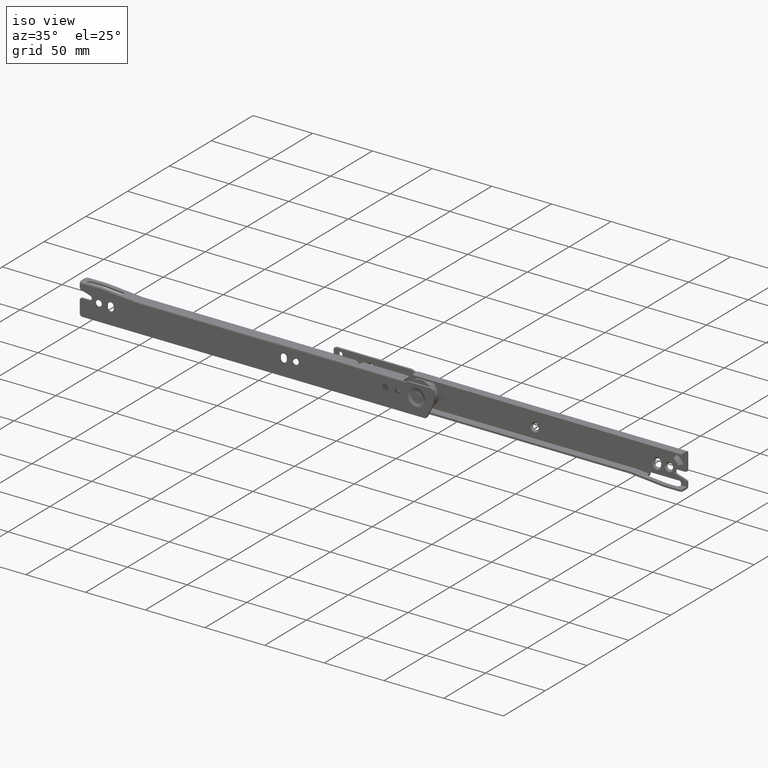
[diagram: clean part render]
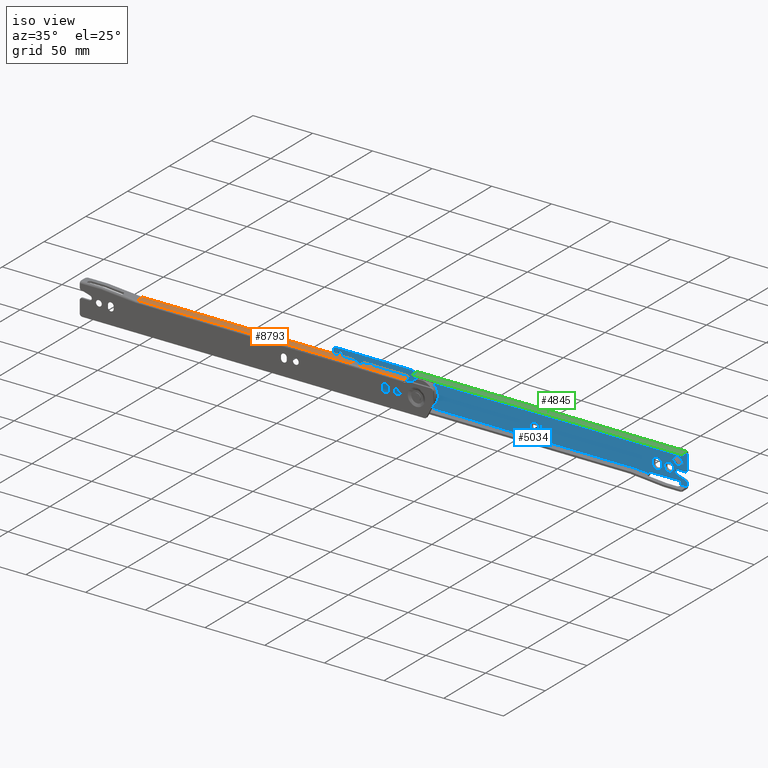
[diagram: same view with three faces highlighted in distinct colors, each labeled with its STEP entity id]
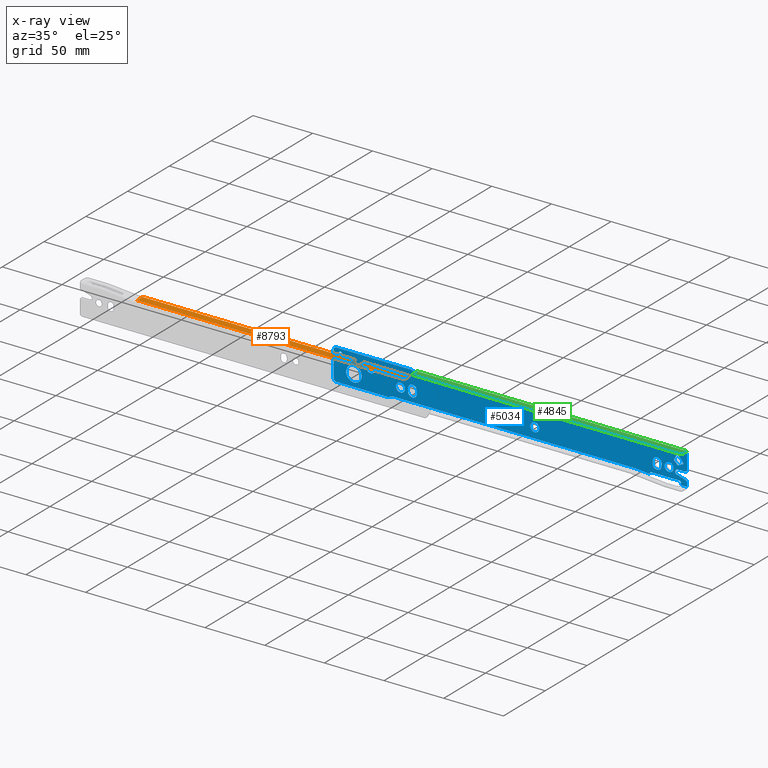
[diagram: x-ray of the same camera — body ghosted, the three highlighted faces saturated]
A machine part, iso view with three faces highlighted in distinct colors.
The next image is the same camera in x-ray (body ghosted, the three faces saturated) — at least one of them is partly hidden behind the body in this view.
Their STEP definitions:

[orange] entity #8793 — the highlighted face is a freeform B-spline surface patch.
#6463=CARTESIAN_POINT('',(271.0,6.0,24.0));
#6464=VERTEX_POINT('',#6463);
#6465=CARTESIAN_POINT('',(269.0,8.0,24.0));
#6466=VERTEX_POINT('',#6465);
#6467=CARTESIAN_POINT('',(271.0,6.0,24.0));
#6468=CARTESIAN_POINT('',(271.0,8.0,23.999999999999996));
#6469=CARTESIAN_POINT('',(269.0,8.0,24.0));
#6477=(BOUNDED_CURVE()B_SPLINE_CURVE(2,(#6467,#6468,#6469),.UNSPECIFIED.,.F.,.U.)CURVE()GEOMETRIC_REPRESENTATION_ITEM()QUASI_UNIFORM_CURVE()RATIONAL_B_SPLINE_CURVE((1.0,0.707106781186548,1.0))REPRESENTATION_ITEM(''));
#6478=EDGE_CURVE('',#6464,#6466,#6477,.T.);
#6524=CARTESIAN_POINT('',(225.056778559224000,8.0,24.0));
#6525=VERTEX_POINT('',#6524);
#6541=CARTESIAN_POINT('',(225.056778559224000,2.0,24.0));
#6542=VERTEX_POINT('',#6541);
#6543=CARTESIAN_POINT('',(225.056778559224000,2.0,24.0));
#6544=CARTESIAN_POINT('',(225.056778559224000,8.0,24.0));
#6545=QUASI_UNIFORM_CURVE('',1,(#6543,#6544),.UNSPECIFIED.,.F.,.U.);
#6546=EDGE_CURVE('',#6542,#6525,#6545,.T.);
#6587=CARTESIAN_POINT('',(232.507881440775490,8.0,24.0));
#6588=VERTEX_POINT('',#6587);
#6609=CARTESIAN_POINT('',(232.507881440775490,2.0,24.0));
#6610=VERTEX_POINT('',#6609);
#6624=CARTESIAN_POINT('',(232.507881440775490,8.0,24.0));
#6625=CARTESIAN_POINT('',(232.507881440775490,2.0,24.0));
#6626=QUASI_UNIFORM_CURVE('',1,(#6624,#6625),.UNSPECIFIED.,.F.,.U.);
#6627=EDGE_CURVE('',#6588,#6610,#6626,.T.);
#7940=CARTESIAN_POINT('',(271.0,1.500000000000000,24.0));
#7941=VERTEX_POINT('',#7940);
#7955=CARTESIAN_POINT('',(47.0,1.500000000000055,24.0));
#7956=VERTEX_POINT('',#7955);
#7957=CARTESIAN_POINT('',(47.0,1.500000000000055,24.0));
#7958=CARTESIAN_POINT('',(271.0,1.500000000000000,24.0));
#7959=QUASI_UNIFORM_CURVE('',1,(#7957,#7958),.UNSPECIFIED.,.F.,.U.);
#7960=EDGE_CURVE('',#7956,#7941,#7959,.T.);
#8475=CARTESIAN_POINT('',(47.0,8.0,24.0));
#8476=VERTEX_POINT('',#8475);
#8477=CARTESIAN_POINT('',(47.0,8.0,24.0));
#8478=CARTESIAN_POINT('',(47.0,1.500000000000055,24.0));
#8479=QUASI_UNIFORM_CURVE('',1,(#8477,#8478),.UNSPECIFIED.,.F.,.U.);
#8480=EDGE_CURVE('',#8476,#7956,#8479,.T.);
#8575=CARTESIAN_POINT('',(271.0,1.500000000000000,24.0));
#8576=CARTESIAN_POINT('',(271.0,6.0,24.0));
#8577=QUASI_UNIFORM_CURVE('',1,(#8575,#8576),.UNSPECIFIED.,.F.,.U.);
#8578=EDGE_CURVE('',#7941,#6464,#8577,.T.);
#8740=CARTESIAN_POINT('',(225.056778559224000,8.0,24.0));
#8741=CARTESIAN_POINT('',(47.0,8.0,24.0));
#8742=QUASI_UNIFORM_CURVE('',1,(#8740,#8741),.UNSPECIFIED.,.F.,.U.);
#8743=EDGE_CURVE('',#6525,#8476,#8742,.T.);
#8750=CARTESIAN_POINT('',(269.0,8.0,24.0));
#8751=CARTESIAN_POINT('',(232.507881440775490,8.0,24.0));
#8752=QUASI_UNIFORM_CURVE('',1,(#8750,#8751),.UNSPECIFIED.,.F.,.U.);
#8753=EDGE_CURVE('',#6466,#6588,#8752,.T.);
#8773=CARTESIAN_POINT('',(35.811200434155452,1.175325012598261,24.0));
#8774=CARTESIAN_POINT('',(282.188805573992680,1.175325012598261,24.0));
#8775=CARTESIAN_POINT('',(35.811200434155452,8.324675161745324,24.0));
#8776=CARTESIAN_POINT('',(282.188805573992680,8.324675161745324,24.0));
#8777=B_SPLINE_SURFACE_WITH_KNOTS('',1,1,((#8773,#8775),(#8774,#8776)),.UNSPECIFIED.,.F.,.F.,.U.,(2,2),(2,2),(0.0,246.377605139837300),(0.0,7.149350149147063),.UNSPECIFIED.);
#8778=ORIENTED_EDGE('',*,*,#8578,.T.);
#8779=ORIENTED_EDGE('',*,*,#6478,.T.);
#8780=ORIENTED_EDGE('',*,*,#8753,.T.);
#8781=ORIENTED_EDGE('',*,*,#6627,.T.);
#8782=CARTESIAN_POINT('',(225.056778559224000,2.0,24.0));
#8783=CARTESIAN_POINT('',(232.507881440775490,2.0,24.0));
#8784=QUASI_UNIFORM_CURVE('',1,(#8782,#8783),.UNSPECIFIED.,.F.,.U.);
#8785=EDGE_CURVE('',#6542,#6610,#8784,.T.);
#8786=ORIENTED_EDGE('',*,*,#8785,.F.);
#8787=ORIENTED_EDGE('',*,*,#6546,.T.);
#8788=ORIENTED_EDGE('',*,*,#8743,.T.);
#8789=ORIENTED_EDGE('',*,*,#8480,.T.);
#8790=ORIENTED_EDGE('',*,*,#7960,.T.);
#8791=EDGE_LOOP('',(#8778,#8779,#8780,#8781,#8786,#8787,#8788,#8789,#8790));
#8792=FACE_OUTER_BOUND('',#8791,.T.);
#8793=ADVANCED_FACE('',(#8792),#8777,.T.);

[blue] entity #5034 — the highlighted face is a freeform B-spline surface patch.
#994=CARTESIAN_POINT('',(215.512123809989110,11.000000000493939,11.103184489322549));
#995=VERTEX_POINT('',#994);
#1001=CARTESIAN_POINT('',(222.0,11.0,4.999999999999800));
#1002=VERTEX_POINT('',#1001);
#1003=CARTESIAN_POINT('',(222.0,11.0,4.999999999999800));
#1004=CARTESIAN_POINT('',(215.885410572044690,11.0,4.999999999999800));
#1005=CARTESIAN_POINT('',(215.512123809989160,11.000000000493941,11.103184489322551));
#1013=(BOUNDED_CURVE()B_SPLINE_CURVE(2,(#1003,#1004,#1005),.UNSPECIFIED.,.F.,.U.)B_SPLINE_CURVE_WITH_KNOTS((3,3),(0.500000000000000,0.739332962046721),.UNSPECIFIED.)CURVE()GEOMETRIC_REPRESENTATION_ITEM()RATIONAL_B_SPLINE_CURVE((1.0,0.719603993511912,0.976072041254750))REPRESENTATION_ITEM(''));
#1014=EDGE_CURVE('',#1002,#995,#1013,.T.);
#1016=CARTESIAN_POINT('',(222.0,11.0,18.000000000000199));
#1017=VERTEX_POINT('',#1016);
#1018=CARTESIAN_POINT('',(222.0,11.0,18.000000000000199));
#1019=CARTESIAN_POINT('',(228.500000000000280,11.0,18.000000000000206));
#1020=CARTESIAN_POINT('',(228.500000000000200,11.0,11.500000000000000));
#1021=CARTESIAN_POINT('',(228.500000000000280,11.0,4.999999999999802));
#1022=CARTESIAN_POINT('',(222.0,11.0,4.999999999999800));
#1030=(BOUNDED_CURVE()B_SPLINE_CURVE(2,(#1018,#1019,#1020,#1021,#1022),.UNSPECIFIED.,.F.,.U.)B_SPLINE_CURVE_WITH_KNOTS((3,2,3),(0.0,0.250000000000000,0.500000000000000),.UNSPECIFIED.)CURVE()GEOMETRIC_REPRESENTATION_ITEM()RATIONAL_B_SPLINE_CURVE((1.0,0.707106781186547,1.0,0.707106781186547,1.0))REPRESENTATION_ITEM(''));
#1031=EDGE_CURVE('',#1017,#1002,#1030,.T.);
#1033=CARTESIAN_POINT('',(219.714483156352910,11.000000000983899,17.584933259305210));
#1034=VERTEX_POINT('',#1033);
#1035=CARTESIAN_POINT('',(219.714483156352910,11.000000000983896,17.584933259305210));
#1036=CARTESIAN_POINT('',(220.819551979800990,11.000000000000005,18.000000000000203));
#1037=CARTESIAN_POINT('',(222.0,11.0,18.000000000000199));
#1045=(BOUNDED_CURVE()B_SPLINE_CURVE(2,(#1035,#1036,#1037),.UNSPECIFIED.,.F.,.U.)B_SPLINE_CURVE_WITH_KNOTS((3,3),(0.940284170392434,1.0),.UNSPECIFIED.)CURVE()GEOMETRIC_REPRESENTATION_ITEM()RATIONAL_B_SPLINE_CURVE((0.893499554015960,0.930038553808497,1.0))REPRESENTATION_ITEM(''));
#1046=EDGE_CURVE('',#1034,#1017,#1045,.T.);
#1086=CARTESIAN_POINT('',(215.512123809989160,11.000000000493941,11.103184489322551));
#1087=CARTESIAN_POINT('',(215.499999999999860,11.0,11.301407034878160));
#1088=CARTESIAN_POINT('',(215.499999999999800,11.0,11.500000000000000));
#1089=CARTESIAN_POINT('',(215.499999999999740,11.0,16.001962356593342));
#1090=CARTESIAN_POINT('',(219.714483156353000,11.000000000983894,17.584933259305213));
#1098=(BOUNDED_CURVE()B_SPLINE_CURVE(2,(#1086,#1087,#1088,#1089,#1090),.UNSPECIFIED.,.F.,.U.)B_SPLINE_CURVE_WITH_KNOTS((3,2,3),(0.739332962046721,0.750000000000000,0.940284170392433),.UNSPECIFIED.)CURVE()GEOMETRIC_REPRESENTATION_ITEM()RATIONAL_B_SPLINE_CURVE((0.976072041254750,0.987502787674636,1.0,0.777068227378051,0.893499554015959))REPRESENTATION_ITEM(''));
#1099=EDGE_CURVE('',#995,#1034,#1098,.T.);
#1140=CARTESIAN_POINT('',(369.779001698152680,10.999999999500510,11.034519988590780));
#1141=VERTEX_POINT('',#1140);
#1147=CARTESIAN_POINT('',(373.500000000000000,11.0,7.750000000000000));
#1148=VERTEX_POINT('',#1147);
#1149=CARTESIAN_POINT('',(373.500000000000000,11.0,7.750000000000000));
#1150=CARTESIAN_POINT('',(370.189880255809160,11.0,7.749999999999999));
#1151=CARTESIAN_POINT('',(369.779001698152800,10.999999999500510,11.034519988590779));
#1159=(BOUNDED_CURVE()B_SPLINE_CURVE(2,(#1149,#1150,#1151),.UNSPECIFIED.,.F.,.U.)B_SPLINE_CURVE_WITH_KNOTS((3,3),(0.500000000000000,0.728526070707138),.UNSPECIFIED.)CURVE()GEOMETRIC_REPRESENTATION_ITEM()RATIONAL_B_SPLINE_CURVE((1.0,0.732265054271183,0.954005429649529))REPRESENTATION_ITEM(''));
#1160=EDGE_CURVE('',#1148,#1141,#1159,.T.);
#1162=CARTESIAN_POINT('',(377.249857212849920,10.999999998380581,11.532724519387109));
#1163=VERTEX_POINT('',#1162);
#1164=CARTESIAN_POINT('',(377.249857212849860,10.999999998380588,11.532724519387108));
#1165=CARTESIAN_POINT('',(377.250000000000000,10.999999999999996,11.516362576833753));
#1166=CARTESIAN_POINT('',(377.250000000000000,11.0,11.500000000000000));
#1167=CARTESIAN_POINT('',(377.250000000000060,11.0,7.750000000000001));
#1168=CARTESIAN_POINT('',(373.500000000000000,11.0,7.750000000000000));
#1176=(BOUNDED_CURVE()B_SPLINE_CURVE(2,(#1164,#1165,#1166,#1167,#1168),.UNSPECIFIED.,.F.,.U.)B_SPLINE_CURVE_WITH_KNOTS((3,2,3),(0.248460104607601,0.250000000000000,0.500000000000000),.UNSPECIFIED.)CURVE()GEOMETRIC_REPRESENTATION_ITEM()RATIONAL_B_SPLINE_CURVE((0.996414025653258,0.998195900327537,1.0,0.707106781186547,1.0))REPRESENTATION_ITEM(''));
#1177=EDGE_CURVE('',#1163,#1148,#1176,.T.);
#1257=CARTESIAN_POINT('',(373.500000000000000,11.0,15.250000000000000));
#1258=VERTEX_POINT('',#1257);
#1259=CARTESIAN_POINT('',(373.500000000000000,11.0,15.250000000000000));
#1260=CARTESIAN_POINT('',(377.217417017414110,10.999999999999998,15.249999999999993));
#1261=CARTESIAN_POINT('',(377.249857212849860,10.999999998380588,11.532724519387108));
#1269=(BOUNDED_CURVE()B_SPLINE_CURVE(2,(#1259,#1260,#1261),.UNSPECIFIED.,.F.,.U.)B_SPLINE_CURVE_WITH_KNOTS((3,3),(0.0,0.248460104607601),.UNSPECIFIED.)CURVE()GEOMETRIC_REPRESENTATION_ITEM()RATIONAL_B_SPLINE_CURVE((1.0,0.708910880859011,0.996414025653258))REPRESENTATION_ITEM(''));
#1270=EDGE_CURVE('',#1258,#1163,#1269,.T.);
#1272=CARTESIAN_POINT('',(369.779001698152740,10.999999999500506,11.034519988590777));
#1273=CARTESIAN_POINT('',(369.750000000000000,10.999999999999996,11.266356518153730));
#1274=CARTESIAN_POINT('',(369.750000000000000,11.0,11.500000000000000));
#1275=CARTESIAN_POINT('',(369.750000000000000,11.0,15.250000000000002));
#1276=CARTESIAN_POINT('',(373.500000000000000,11.0,15.250000000000000));
#1284=(BOUNDED_CURVE()B_SPLINE_CURVE(2,(#1272,#1273,#1274,#1275,#1276),.UNSPECIFIED.,.F.,.U.)B_SPLINE_CURVE_WITH_KNOTS((3,2,3),(0.728526070707139,0.750000000000000,1.0),.UNSPECIFIED.)CURVE()GEOMETRIC_REPRESENTATION_ITEM()RATIONAL_B_SPLINE_CURVE((0.954005429649531,0.974841726915366,1.0,0.707106781186547,1.0))REPRESENTATION_ITEM(''));
#1285=EDGE_CURVE('',#1141,#1258,#1284,.T.);
#1326=CARTESIAN_POINT('',(257.279001698152800,10.999999999500499,11.034519988590770));
#1327=VERTEX_POINT('',#1326);
#1333=CARTESIAN_POINT('',(261.0,11.0,7.750000000000000));
#1334=VERTEX_POINT('',#1333);
#1335=CARTESIAN_POINT('',(261.0,11.0,7.750000000000000));
#1336=CARTESIAN_POINT('',(257.689880255809270,11.0,7.749999999999999));
#1337=CARTESIAN_POINT('',(257.279001698152740,10.999999999500499,11.034519988590768));
#1345=(BOUNDED_CURVE()B_SPLINE_CURVE(2,(#1335,#1336,#1337),.UNSPECIFIED.,.F.,.U.)B_SPLINE_CURVE_WITH_KNOTS((3,3),(0.500000000000000,0.728526070707138),.UNSPECIFIED.)CURVE()GEOMETRIC_REPRESENTATION_ITEM()RATIONAL_B_SPLINE_CURVE((1.0,0.732265054271183,0.954005429649529))REPRESENTATION_ITEM(''));
#1346=EDGE_CURVE('',#1334,#1327,#1345,.T.);
#1348=CARTESIAN_POINT('',(264.749857212849920,10.999999998380570,11.532724519387109));
#1349=VERTEX_POINT('',#1348);
#1350=CARTESIAN_POINT('',(264.749857212849800,10.999999998380570,11.532724519387111));
#1351=CARTESIAN_POINT('',(264.750000000000060,10.999999999999998,11.516362576833757));
#1352=CARTESIAN_POINT('',(264.750000000000000,11.0,11.500000000000000));
#1353=CARTESIAN_POINT('',(264.749999999999940,11.0,7.750000000000001));
#1354=CARTESIAN_POINT('',(261.0,11.0,7.750000000000000));
#1362=(BOUNDED_CURVE()B_SPLINE_CURVE(2,(#1350,#1351,#1352,#1353,#1354),.UNSPECIFIED.,.F.,.U.)B_SPLINE_CURVE_WITH_KNOTS((3,2,3),(0.248460104607601,0.250000000000000,0.500000000000000),.UNSPECIFIED.)CURVE()GEOMETRIC_REPRESENTATION_ITEM()RATIONAL_B_SPLINE_CURVE((0.996414025653257,0.998195900327536,1.0,0.707106781186547,1.0))REPRESENTATION_ITEM(''));
#1363=EDGE_CURVE('',#1349,#1334,#1362,.T.);
#1443=CARTESIAN_POINT('',(261.0,11.0,15.250000000000000));
#1444=VERTEX_POINT('',#1443);
#1445=CARTESIAN_POINT('',(261.0,11.0,15.250000000000000));
#1446=CARTESIAN_POINT('',(264.717417017414050,11.0,15.249999999999993));
#1447=CARTESIAN_POINT('',(264.749857212849860,10.999999998380568,11.532724519387109));
#1455=(BOUNDED_CURVE()B_SPLINE_CURVE(2,(#1445,#1446,#1447),.UNSPECIFIED.,.F.,.U.)B_SPLINE_CURVE_WITH_KNOTS((3,3),(0.0,0.248460104607601),.UNSPECIFIED.)CURVE()GEOMETRIC_REPRESENTATION_ITEM()RATIONAL_B_SPLINE_CURVE((1.0,0.708910880859011,0.996414025653258))REPRESENTATION_ITEM(''));
#1456=EDGE_CURVE('',#1444,#1349,#1455,.T.);
#1458=CARTESIAN_POINT('',(257.279001698152740,10.999999999500496,11.034519988590777));
#1459=CARTESIAN_POINT('',(257.250000000000060,10.999999999999996,11.266356518153730));
#1460=CARTESIAN_POINT('',(257.250000000000110,11.0,11.500000000000000));
#1461=CARTESIAN_POINT('',(257.250000000000110,11.0,15.250000000000002));
#1462=CARTESIAN_POINT('',(261.0,11.0,15.250000000000000));
#1470=(BOUNDED_CURVE()B_SPLINE_CURVE(2,(#1458,#1459,#1460,#1461,#1462),.UNSPECIFIED.,.F.,.U.)B_SPLINE_CURVE_WITH_KNOTS((3,2,3),(0.728526070707139,0.750000000000000,1.0),.UNSPECIFIED.)CURVE()GEOMETRIC_REPRESENTATION_ITEM()RATIONAL_B_SPLINE_CURVE((0.954005429649531,0.974841726915366,1.0,0.707106781186547,1.0))REPRESENTATION_ITEM(''));
#1471=EDGE_CURVE('',#1327,#1444,#1470,.T.);
#1512=CARTESIAN_POINT('',(232.279001698152710,10.999999999500499,19.034519988590770));
#1513=VERTEX_POINT('',#1512);
#1519=CARTESIAN_POINT('',(236.0,11.0,15.750000000000000));
#1520=VERTEX_POINT('',#1519);
#1521=CARTESIAN_POINT('',(236.0,11.0,15.750000000000000));
#1522=CARTESIAN_POINT('',(232.689880255809100,11.0,15.749999999999998));
#1523=CARTESIAN_POINT('',(232.279001698152830,10.999999999500499,19.034519988590780));
#1531=(BOUNDED_CURVE()B_SPLINE_CURVE(2,(#1521,#1522,#1523),.UNSPECIFIED.,.F.,.U.)B_SPLINE_CURVE_WITH_KNOTS((3,3),(0.500000000000000,0.728526070707138),.UNSPECIFIED.)CURVE()GEOMETRIC_REPRESENTATION_ITEM()RATIONAL_B_SPLINE_CURVE((1.0,0.732265054271183,0.954005429649529))REPRESENTATION_ITEM(''));
#1532=EDGE_CURVE('',#1520,#1513,#1531,.T.);
#1534=CARTESIAN_POINT('',(239.749857212849890,10.999999998380590,19.532724519387109));
#1535=VERTEX_POINT('',#1534);
#1536=CARTESIAN_POINT('',(239.749857212849860,10.999999998380590,19.532724519387109));
#1537=CARTESIAN_POINT('',(239.750000000000000,10.999999999999998,19.516362576833764));
#1538=CARTESIAN_POINT('',(239.750000000000000,11.0,19.500000000000000));
#1539=CARTESIAN_POINT('',(239.750000000000060,11.0,15.749999999999995));
#1540=CARTESIAN_POINT('',(236.0,11.0,15.750000000000000));
#1548=(BOUNDED_CURVE()B_SPLINE_CURVE(2,(#1536,#1537,#1538,#1539,#1540),.UNSPECIFIED.,.F.,.U.)B_SPLINE_CURVE_WITH_KNOTS((3,2,3),(0.248460104607601,0.250000000000000,0.500000000000000),.UNSPECIFIED.)CURVE()GEOMETRIC_REPRESENTATION_ITEM()RATIONAL_B_SPLINE_CURVE((0.996414025653258,0.998195900327537,1.0,0.707106781186547,1.0))REPRESENTATION_ITEM(''));
#1549=EDGE_CURVE('',#1535,#1520,#1548,.T.);
#1629=CARTESIAN_POINT('',(236.0,11.0,23.250000000000000));
#1630=VERTEX_POINT('',#1629);
#1631=CARTESIAN_POINT('',(236.0,11.0,23.250000000000000));
#1632=CARTESIAN_POINT('',(239.717417017414160,10.999999999999998,23.249999999999996));
#1633=CARTESIAN_POINT('',(239.749857212849890,10.999999998380588,19.532724519387106));
#1641=(BOUNDED_CURVE()B_SPLINE_CURVE(2,(#1631,#1632,#1633),.UNSPECIFIED.,.F.,.U.)B_SPLINE_CURVE_WITH_KNOTS((3,3),(0.0,0.248460104607601),.UNSPECIFIED.)CURVE()GEOMETRIC_REPRESENTATION_ITEM()RATIONAL_B_SPLINE_CURVE((1.0,0.708910880859011,0.996414025653258))REPRESENTATION_ITEM(''));
#1642=EDGE_CURVE('',#1630,#1535,#1641,.T.);
#1644=CARTESIAN_POINT('',(232.279001698152740,10.999999999500506,19.034519988590770));
#1645=CARTESIAN_POINT('',(232.250000000000000,10.999999999999996,19.266356518153724));
#1646=CARTESIAN_POINT('',(232.250000000000000,11.0,19.500000000000000));
#1647=CARTESIAN_POINT('',(232.249999999999910,11.0,23.250000000000004));
#1648=CARTESIAN_POINT('',(236.0,11.0,23.250000000000000));
#1656=(BOUNDED_CURVE()B_SPLINE_CURVE(2,(#1644,#1645,#1646,#1647,#1648),.UNSPECIFIED.,.F.,.U.)B_SPLINE_CURVE_WITH_KNOTS((3,2,3),(0.728526070707139,0.750000000000000,1.0),.UNSPECIFIED.)CURVE()GEOMETRIC_REPRESENTATION_ITEM()RATIONAL_B_SPLINE_CURVE((0.954005429649531,0.974841726915366,1.0,0.707106781186547,1.0))REPRESENTATION_ITEM(''));
#1657=EDGE_CURVE('',#1513,#1630,#1656,.T.);
#1704=CARTESIAN_POINT('',(208.812233328869610,11.0,23.656559910700238));
#1705=VERTEX_POINT('',#1704);
#1711=CARTESIAN_POINT('',(210.550000000000010,11.0,21.699999999999999));
#1712=VERTEX_POINT('',#1711);
#1713=CARTESIAN_POINT('',(208.812233328869610,10.999999999999998,23.656559910700242));
#1714=CARTESIAN_POINT('',(208.799999999999980,11.000000000000005,23.553642209442284));
#1715=CARTESIAN_POINT('',(208.800000000000010,11.0,23.449999999999999));
#1716=CARTESIAN_POINT('',(208.799999999999950,11.0,21.699999999999999));
#1717=CARTESIAN_POINT('',(210.550000000000010,11.0,21.699999999999999));
#1725=(BOUNDED_CURVE()B_SPLINE_CURVE(2,(#1713,#1714,#1715,#1716,#1717),.UNSPECIFIED.,.F.,.U.)B_SPLINE_CURVE_WITH_KNOTS((3,2,3),(0.229562473505742,0.250000000000000,0.500000000000000),.UNSPECIFIED.)CURVE()GEOMETRIC_REPRESENTATION_ITEM()RATIONAL_B_SPLINE_CURVE((0.956026754168477,0.976055948322046,1.0,0.707106781186547,1.0))REPRESENTATION_ITEM(''));
#1726=EDGE_CURVE('',#1705,#1712,#1725,.T.);
#1728=CARTESIAN_POINT('',(212.296735897237710,11.0,23.343165055804750));
#1729=VERTEX_POINT('',#1728);
#1730=CARTESIAN_POINT('',(210.550000000000010,11.0,21.699999999999999));
#1731=CARTESIAN_POINT('',(212.196235617067460,10.999999999999998,21.700000000000003));
#1732=CARTESIAN_POINT('',(212.296735897237740,11.0,23.343165055804754));
#1740=(BOUNDED_CURVE()B_SPLINE_CURVE(2,(#1730,#1731,#1732),.UNSPECIFIED.,.F.,.U.)B_SPLINE_CURVE_WITH_KNOTS((3,3),(0.500000000000000,0.739332962240142),.UNSPECIFIED.)CURVE()GEOMETRIC_REPRESENTATION_ITEM()RATIONAL_B_SPLINE_CURVE((1.0,0.719603993285305,0.976072041669287))REPRESENTATION_ITEM(''));
#1741=EDGE_CURVE('',#1712,#1729,#1740,.T.);
#1815=CARTESIAN_POINT('',(210.550000000000010,11.0,25.199999999999999));
#1816=VERTEX_POINT('',#1815);
#1817=CARTESIAN_POINT('',(212.296735897237710,11.000000000000005,23.343165055804750));
#1818=CARTESIAN_POINT('',(212.299999999999950,11.000000000000005,23.396532664218196));
#1819=CARTESIAN_POINT('',(212.300000000000010,11.0,23.449999999999999));
#1820=CARTESIAN_POINT('',(212.299999999999950,11.0,25.200000000000006));
#1821=CARTESIAN_POINT('',(210.550000000000010,11.0,25.199999999999999));
#1829=(BOUNDED_CURVE()B_SPLINE_CURVE(2,(#1817,#1818,#1819,#1820,#1821),.UNSPECIFIED.,.F.,.U.)B_SPLINE_CURVE_WITH_KNOTS((3,2,3),(0.739332962240142,0.750000000000000,1.0),.UNSPECIFIED.)CURVE()GEOMETRIC_REPRESENTATION_ITEM()RATIONAL_B_SPLINE_CURVE((0.976072041669288,0.987502787901242,1.0,0.707106781186547,1.0))REPRESENTATION_ITEM(''));
#1830=EDGE_CURVE('',#1729,#1816,#1829,.T.);
#1832=CARTESIAN_POINT('',(210.550000000000010,11.0,25.199999999999999));
#1833=CARTESIAN_POINT('',(208.995694579676780,11.000000000000002,25.200000000000003));
#1834=CARTESIAN_POINT('',(208.812233328869670,11.0,23.656559910700238));
#1842=(BOUNDED_CURVE()B_SPLINE_CURVE(2,(#1832,#1833,#1834),.UNSPECIFIED.,.F.,.U.)B_SPLINE_CURVE_WITH_KNOTS((3,3),(0.0,0.229562473505742),.UNSPECIFIED.)CURVE()GEOMETRIC_REPRESENTATION_ITEM()RATIONAL_B_SPLINE_CURVE((1.0,0.731050832864502,0.956026754168476))REPRESENTATION_ITEM(''));
#1843=EDGE_CURVE('',#1816,#1705,#1842,.T.);
#1884=CARTESIAN_POINT('',(482.279001698152800,10.999999999500490,11.034519988590770));
#1885=VERTEX_POINT('',#1884);
#1891=CARTESIAN_POINT('',(486.0,11.0,7.750000000000000));
#1892=VERTEX_POINT('',#1891);
#1893=CARTESIAN_POINT('',(486.0,11.0,7.750000000000000));
#1894=CARTESIAN_POINT('',(482.689880255809210,11.0,7.749999999999999));
#1895=CARTESIAN_POINT('',(482.279001698152800,10.999999999500487,11.034519988590768));
#1903=(BOUNDED_CURVE()B_SPLINE_CURVE(2,(#1893,#1894,#1895),.UNSPECIFIED.,.F.,.U.)B_SPLINE_CURVE_WITH_KNOTS((3,3),(0.500000000000000,0.728526070707138),.UNSPECIFIED.)CURVE()GEOMETRIC_REPRESENTATION_ITEM()RATIONAL_B_SPLINE_CURVE((1.0,0.732265054271183,0.954005429649529))REPRESENTATION_ITEM(''));
#1904=EDGE_CURVE('',#1892,#1885,#1903,.T.);
#1906=CARTESIAN_POINT('',(489.749857212849800,10.999999998380609,11.532724519387109));
#1907=VERTEX_POINT('',#1906);
#1908=CARTESIAN_POINT('',(489.749857212849860,10.999999998380607,11.532724519387108));
#1909=CARTESIAN_POINT('',(489.749999999999940,10.999999999999996,11.516362576833753));
#1910=CARTESIAN_POINT('',(489.749999999999890,11.0,11.500000000000000));
#1911=CARTESIAN_POINT('',(489.749999999999940,11.0,7.750000000000001));
#1912=CARTESIAN_POINT('',(486.0,11.0,7.750000000000000));
#1920=(BOUNDED_CURVE()B_SPLINE_CURVE(2,(#1908,#1909,#1910,#1911,#1912),.UNSPECIFIED.,.F.,.U.)B_SPLINE_CURVE_WITH_KNOTS((3,2,3),(0.248460104607601,0.250000000000000,0.500000000000000),.UNSPECIFIED.)CURVE()GEOMETRIC_REPRESENTATION_ITEM()RATIONAL_B_SPLINE_CURVE((0.996414025653258,0.998195900327537,1.0,0.707106781186547,1.0))REPRESENTATION_ITEM(''));
#1921=EDGE_CURVE('',#1907,#1892,#1920,.T.);
#2001=CARTESIAN_POINT('',(486.0,11.0,15.250000000000000));
#2002=VERTEX_POINT('',#2001);
#2003=CARTESIAN_POINT('',(486.0,11.0,15.250000000000000));
#2004=CARTESIAN_POINT('',(489.717417017413940,10.999999999999998,15.249999999999993));
#2005=CARTESIAN_POINT('',(489.749857212849860,10.999999998380607,11.532724519387108));
#2013=(BOUNDED_CURVE()B_SPLINE_CURVE(2,(#2003,#2004,#2005),.UNSPECIFIED.,.F.,.U.)B_SPLINE_CURVE_WITH_KNOTS((3,3),(0.0,0.248460104607601),.UNSPECIFIED.)CURVE()GEOMETRIC_REPRESENTATION_ITEM()RATIONAL_B_SPLINE_CURVE((1.0,0.708910880859011,0.996414025653258))REPRESENTATION_ITEM(''));
#2014=EDGE_CURVE('',#2002,#1907,#2013,.T.);
#2016=CARTESIAN_POINT('',(482.279001698152800,10.999999999500490,11.034519988590770));
#2017=CARTESIAN_POINT('',(482.250000000000000,11.0,11.266356518153723));
#2018=CARTESIAN_POINT('',(482.250000000000000,11.0,11.500000000000000));
#2019=CARTESIAN_POINT('',(482.249999999999940,11.0,15.250000000000002));
#2020=CARTESIAN_POINT('',(486.0,11.0,15.250000000000000));
#2028=(BOUNDED_CURVE()B_SPLINE_CURVE(2,(#2016,#2017,#2018,#2019,#2020),.UNSPECIFIED.,.F.,.U.)B_SPLINE_CURVE_WITH_KNOTS((3,2,3),(0.728526070707139,0.750000000000000,1.0),.UNSPECIFIED.)CURVE()GEOMETRIC_REPRESENTATION_ITEM()RATIONAL_B_SPLINE_CURVE((0.954005429649531,0.974841726915366,1.0,0.707106781186547,1.0))REPRESENTATION_ITEM(''));
#2029=EDGE_CURVE('',#1885,#2002,#2028,.T.);
#2556=CARTESIAN_POINT('',(267.250000000000000,11.0,10.500000000000000));
#2557=VERTEX_POINT('',#2556);
#2572=CARTESIAN_POINT('',(267.250000000000000,11.0,12.500000000000000));
#2573=VERTEX_POINT('',#2572);
#2579=CARTESIAN_POINT('',(267.250000000000000,11.0,10.500000000000000));
#2580=CARTESIAN_POINT('',(267.250000000000000,11.0,12.500000000000000));
#2581=QUASI_UNIFORM_CURVE('',1,(#2579,#2580),.UNSPECIFIED.,.F.,.U.);
#2582=EDGE_CURVE('',#2557,#2573,#2581,.T.);
#2607=CARTESIAN_POINT('',(274.750000000000000,11.0,12.500000000000000));
#2608=VERTEX_POINT('',#2607);
#2614=CARTESIAN_POINT('',(267.250000000000110,11.0,12.500000000000000));
#2615=CARTESIAN_POINT('',(267.250000000000110,11.0,16.250000000000004));
#2616=CARTESIAN_POINT('',(271.0,11.0,16.250000000000000));
#2617=CARTESIAN_POINT('',(274.750000000000000,11.0,16.250000000000004));
#2618=CARTESIAN_POINT('',(274.750000000000000,11.0,12.500000000000000));
#2626=(BOUNDED_CURVE()B_SPLINE_CURVE(2,(#2614,#2615,#2616,#2617,#2618),.UNSPECIFIED.,.F.,.U.)B_SPLINE_CURVE_WITH_KNOTS((3,2,3),(0.0,0.500000000000000,1.0),.UNSPECIFIED.)CURVE()GEOMETRIC_REPRESENTATION_ITEM()RATIONAL_B_SPLINE_CURVE((1.0,0.707106781186547,1.0,0.707106781186547,1.0))REPRESENTATION_ITEM(''));
#2627=EDGE_CURVE('',#2573,#2608,#2626,.T.);
#2666=CARTESIAN_POINT('',(274.750000000000000,11.0,10.500000000000000));
#2667=VERTEX_POINT('',#2666);
#2691=CARTESIAN_POINT('',(274.750000000000000,11.0,10.500000000000000));
#2692=CARTESIAN_POINT('',(274.750000000000000,11.0,6.750000000000001));
#2693=CARTESIAN_POINT('',(271.0,11.0,6.750000000000001));
#2694=CARTESIAN_POINT('',(267.250000000000110,11.0,6.750000000000001));
#2695=CARTESIAN_POINT('',(267.250000000000110,11.0,10.500000000000000));
#2703=(BOUNDED_CURVE()B_SPLINE_CURVE(2,(#2691,#2692,#2693,#2694,#2695),.UNSPECIFIED.,.F.,.U.)B_SPLINE_CURVE_WITH_KNOTS((3,2,3),(0.0,0.500000000000000,1.0),.UNSPECIFIED.)CURVE()GEOMETRIC_REPRESENTATION_ITEM()RATIONAL_B_SPLINE_CURVE((1.0,0.707106781186547,1.0,0.707106781186547,1.0))REPRESENTATION_ITEM(''));
#2704=EDGE_CURVE('',#2667,#2557,#2703,.T.);
#2721=CARTESIAN_POINT('',(274.750000000000000,11.0,12.500000000000000));
#2722=CARTESIAN_POINT('',(274.750000000000000,11.0,10.500000000000000));
#2723=QUASI_UNIFORM_CURVE('',1,(#2721,#2722),.UNSPECIFIED.,.F.,.U.);
#2724=EDGE_CURVE('',#2608,#2667,#2723,.T.);
#2743=CARTESIAN_POINT('',(274.0,11.0,26.0));
#2744=VERTEX_POINT('',#2743);
#2750=CARTESIAN_POINT('',(275.0,11.0,26.0));
#2751=VERTEX_POINT('',#2750);
#2752=CARTESIAN_POINT('',(275.0,11.0,26.0));
#2753=CARTESIAN_POINT('',(274.0,11.0,26.0));
#2754=QUASI_UNIFORM_CURVE('',1,(#2752,#2753),.UNSPECIFIED.,.F.,.U.);
#2755=EDGE_CURVE('',#2751,#2744,#2754,.T.);
#2778=CARTESIAN_POINT('',(255.500000000000000,11.0,3.0));
#2779=VERTEX_POINT('',#2778);
#2821=CARTESIAN_POINT('',(254.500000000000000,11.0,3.0));
#2822=VERTEX_POINT('',#2821);
#2823=CARTESIAN_POINT('',(254.500000000000000,11.0,3.0));
#2824=CARTESIAN_POINT('',(255.500000000000000,11.0,3.0));
#2825=QUASI_UNIFORM_CURVE('',1,(#2823,#2824),.UNSPECIFIED.,.F.,.U.);
#2826=EDGE_CURVE('',#2822,#2779,#2825,.T.);
#2849=CARTESIAN_POINT('',(250.500000000000000,11.0,1.500000000000000));
#2850=VERTEX_POINT('',#2849);
#2851=CARTESIAN_POINT('',(250.500000000000000,11.0,1.500000000000000));
#2852=CARTESIAN_POINT('',(254.500000000000000,11.0,3.0));
#2853=QUASI_UNIFORM_CURVE('',1,(#2851,#2852),.UNSPECIFIED.,.F.,.U.);
#2854=EDGE_CURVE('',#2850,#2822,#2853,.T.);
#2877=CARTESIAN_POINT('',(207.0,11.0,1.500000000000000));
#2878=VERTEX_POINT('',#2877);
#2879=CARTESIAN_POINT('',(207.0,11.0,1.500000000000000));
#2880=CARTESIAN_POINT('',(250.500000000000000,11.0,1.500000000000000));
#2881=QUASI_UNIFORM_CURVE('',1,(#2879,#2880),.UNSPECIFIED.,.F.,.U.);
#2882=EDGE_CURVE('',#2878,#2850,#2881,.T.);
#2922=CARTESIAN_POINT('',(205.0,11.0,3.500000000000000));
#2923=VERTEX_POINT('',#2922);
#2924=CARTESIAN_POINT('',(205.0,11.0,3.500000000000000));
#2925=CARTESIAN_POINT('',(205.000000000000090,11.0,1.500000000000000));
#2926=CARTESIAN_POINT('',(207.0,11.0,1.500000000000000));
#2934=(BOUNDED_CURVE()B_SPLINE_CURVE(2,(#2924,#2925,#2926),.UNSPECIFIED.,.F.,.U.)CURVE()GEOMETRIC_REPRESENTATION_ITEM()QUASI_UNIFORM_CURVE()RATIONAL_B_SPLINE_CURVE((1.0,0.707106781186548,1.0))REPRESENTATION_ITEM(''));
#2935=EDGE_CURVE('',#2923,#2878,#2934,.T.);
#2958=CARTESIAN_POINT('',(205.0,11.0,25.500000000000000));
#2959=VERTEX_POINT('',#2958);
#2960=CARTESIAN_POINT('',(205.0,11.0,25.500000000000000));
#2961=CARTESIAN_POINT('',(205.0,11.0,3.500000000000000));
#2962=QUASI_UNIFORM_CURVE('',1,(#2960,#2961),.UNSPECIFIED.,.F.,.U.);
#2963=EDGE_CURVE('',#2959,#2923,#2962,.T.);
#3003=CARTESIAN_POINT('',(207.0,11.0,27.500000000000000));
#3004=VERTEX_POINT('',#3003);
#3005=CARTESIAN_POINT('',(207.0,11.0,27.500000000000000));
#3006=CARTESIAN_POINT('',(205.000000000000090,11.0,27.500000000000004));
#3007=CARTESIAN_POINT('',(205.0,11.0,25.500000000000000));
#3015=(BOUNDED_CURVE()B_SPLINE_CURVE(2,(#3005,#3006,#3007),.UNSPECIFIED.,.F.,.U.)CURVE()GEOMETRIC_REPRESENTATION_ITEM()QUASI_UNIFORM_CURVE()RATIONAL_B_SPLINE_CURVE((1.0,0.707106781186548,1.0))REPRESENTATION_ITEM(''));
#3016=EDGE_CURVE('',#3004,#2959,#3015,.T.);
#3039=CARTESIAN_POINT('',(270.0,11.0,27.500000000000000));
#3040=VERTEX_POINT('',#3039);
#3041=CARTESIAN_POINT('',(270.0,11.0,27.500000000000000));
#3042=CARTESIAN_POINT('',(207.0,11.0,27.500000000000000));
#3043=QUASI_UNIFORM_CURVE('',1,(#3041,#3042),.UNSPECIFIED.,.F.,.U.);
#3044=EDGE_CURVE('',#3040,#3004,#3043,.T.);
#3065=CARTESIAN_POINT('',(274.0,11.0,26.0));
#3066=CARTESIAN_POINT('',(270.0,11.0,27.500000000000000));
#3067=QUASI_UNIFORM_CURVE('',1,(#3065,#3066),.UNSPECIFIED.,.F.,.U.);
#3068=EDGE_CURVE('',#2744,#3040,#3067,.T.);
#3091=CARTESIAN_POINT('',(496.858194938332020,11.0,16.380163169182250));
#3092=VERTEX_POINT('',#3091);
#3108=CARTESIAN_POINT('',(491.880163169182030,11.0,21.358194938332101));
#3109=VERTEX_POINT('',#3108);
#3183=CARTESIAN_POINT('',(492.545639999999990,11.0,22.702494000000002));
#3184=VERTEX_POINT('',#3183);
#3198=CARTESIAN_POINT('',(492.545639999999990,11.0,22.702494000000002));
#3199=CARTESIAN_POINT('',(491.880163169182030,11.0,21.358194938332101));
#3200=QUASI_UNIFORM_CURVE('',1,(#3198,#3199),.UNSPECIFIED.,.F.,.U.);
#3201=EDGE_CURVE('',#3184,#3109,#3200,.T.);
#3213=CARTESIAN_POINT('',(498.202494248104980,11.0,17.045639964979799));
#3214=VERTEX_POINT('',#3213);
#3248=CARTESIAN_POINT('',(498.202494248104980,11.0,17.045639964979799));
#3249=CARTESIAN_POINT('',(496.858194938332020,11.0,16.380163169182250));
#3250=QUASI_UNIFORM_CURVE('',1,(#3248,#3249),.UNSPECIFIED.,.F.,.U.);
#3251=EDGE_CURVE('',#3214,#3092,#3250,.T.);
#3306=CARTESIAN_POINT('',(492.545639999999990,11.0,22.702494000000002));
#3307=CARTESIAN_POINT('',(496.329397447951070,11.000000000000004,20.829397342374197));
#3308=CARTESIAN_POINT('',(498.202494248104810,11.0,17.045639964979689));
#3316=(BOUNDED_CURVE()B_SPLINE_CURVE(2,(#3306,#3307,#3308),.UNSPECIFIED.,.F.,.U.)CURVE()GEOMETRIC_REPRESENTATION_ITEM()QUASI_UNIFORM_CURVE()RATIONAL_B_SPLINE_CURVE((1.0,0.947417543754206,1.0))REPRESENTATION_ITEM(''));
#3317=EDGE_CURVE('',#3184,#3214,#3316,.T.);
#3728=CARTESIAN_POINT('',(496.0,11.0,2.0));
#3729=VERTEX_POINT('',#3728);
#3730=CARTESIAN_POINT('',(494.500000000000000,11.0,3.500000000000000));
#3731=VERTEX_POINT('',#3730);
#3732=CARTESIAN_POINT('',(496.0,11.0,2.0));
#3733=CARTESIAN_POINT('',(496.000000000000060,11.0,3.499999999999999));
#3734=CARTESIAN_POINT('',(494.500000000000000,11.0,3.500000000000000));
#3742=(BOUNDED_CURVE()B_SPLINE_CURVE(2,(#3732,#3733,#3734),.UNSPECIFIED.,.F.,.U.)CURVE()GEOMETRIC_REPRESENTATION_ITEM()QUASI_UNIFORM_CURVE()RATIONAL_B_SPLINE_CURVE((1.0,0.707106781186548,1.0))REPRESENTATION_ITEM(''));
#3743=EDGE_CURVE('',#3729,#3731,#3742,.T.);
#3792=CARTESIAN_POINT('',(496.0,11.0,0.500000000000000));
#3793=VERTEX_POINT('',#3792);
#3799=CARTESIAN_POINT('',(496.0,11.0,0.500000000000000));
#3800=CARTESIAN_POINT('',(496.0,11.0,2.0));
#3801=QUASI_UNIFORM_CURVE('',1,(#3799,#3800),.UNSPECIFIED.,.F.,.U.);
#3802=EDGE_CURVE('',#3793,#3729,#3801,.T.);
#3826=CARTESIAN_POINT('',(469.500000000000000,11.0,2.0));
#3827=VERTEX_POINT('',#3826);
#3833=CARTESIAN_POINT('',(469.500000000000000,11.0,1.979181339285710));
#3834=VERTEX_POINT('',#3833);
#3835=CARTESIAN_POINT('',(469.500000000000000,11.0,2.0));
#3836=CARTESIAN_POINT('',(469.500000000000000,11.0,1.979181339285710));
#3837=QUASI_UNIFORM_CURVE('',1,(#3835,#3836),.UNSPECIFIED.,.F.,.U.);
#3838=EDGE_CURVE('',#3827,#3834,#3837,.T.);
#3863=CARTESIAN_POINT('',(471.0,11.0,3.500000000000000));
#3864=VERTEX_POINT('',#3863);
#3865=CARTESIAN_POINT('',(471.0,11.0,3.500000000000000));
#3866=CARTESIAN_POINT('',(469.500000000000000,11.0,3.499999999999999));
#3867=CARTESIAN_POINT('',(469.500000000000000,11.0,2.0));
#3875=(BOUNDED_CURVE()B_SPLINE_CURVE(2,(#3865,#3866,#3867),.UNSPECIFIED.,.F.,.U.)CURVE()GEOMETRIC_REPRESENTATION_ITEM()QUASI_UNIFORM_CURVE()RATIONAL_B_SPLINE_CURVE((1.0,0.707106781186548,1.0))REPRESENTATION_ITEM(''));
#3876=EDGE_CURVE('',#3864,#3827,#3875,.T.);
#3907=CARTESIAN_POINT('',(494.500000000000000,11.0,3.500000000000000));
#3908=CARTESIAN_POINT('',(471.0,11.0,3.500000000000000));
#3909=QUASI_UNIFORM_CURVE('',1,(#3907,#3908),.UNSPECIFIED.,.F.,.U.);
#3910=EDGE_CURVE('',#3731,#3864,#3909,.T.);
#4051=CARTESIAN_POINT('',(472.250000000000000,11.0,12.500000000000000));
#4052=VERTEX_POINT('',#4051);
#4058=CARTESIAN_POINT('',(472.250000000000000,11.0,10.500000000000000));
#4059=VERTEX_POINT('',#4058);
#4060=CARTESIAN_POINT('',(472.250000000000000,11.0,10.500000000000000));
#4061=CARTESIAN_POINT('',(472.250000000000000,11.0,12.500000000000000));
#4062=QUASI_UNIFORM_CURVE('',1,(#4060,#4061),.UNSPECIFIED.,.F.,.U.);
#4063=EDGE_CURVE('',#4059,#4052,#4062,.T.);
#4098=CARTESIAN_POINT('',(479.750000000000000,11.0,10.500000000000000));
#4099=VERTEX_POINT('',#4098);
#4123=CARTESIAN_POINT('',(479.749999999999890,11.0,10.500000000000000));
#4124=CARTESIAN_POINT('',(479.749999999999940,11.0,6.750000000000001));
#4125=CARTESIAN_POINT('',(476.0,11.0,6.750000000000001));
#4126=CARTESIAN_POINT('',(472.250000000000110,11.0,6.750000000000001));
#4127=CARTESIAN_POINT('',(472.250000000000000,11.0,10.500000000000000));
#4135=(BOUNDED_CURVE()B_SPLINE_CURVE(2,(#4123,#4124,#4125,#4126,#4127),.UNSPECIFIED.,.F.,.U.)B_SPLINE_CURVE_WITH_KNOTS((3,2,3),(0.0,0.500000000000000,1.0),.UNSPECIFIED.)CURVE()GEOMETRIC_REPRESENTATION_ITEM()RATIONAL_B_SPLINE_CURVE((1.0,0.707106781186547,1.0,0.707106781186547,1.0))REPRESENTATION_ITEM(''));
#4136=EDGE_CURVE('',#4099,#4059,#4135,.T.);
#4161=CARTESIAN_POINT('',(479.750000000000000,11.0,12.500000000000000));
#4162=VERTEX_POINT('',#4161);
#4168=CARTESIAN_POINT('',(472.250000000000000,11.0,12.500000000000000));
#4169=CARTESIAN_POINT('',(472.250000000000110,11.0,16.250000000000004));
#4170=CARTESIAN_POINT('',(476.0,11.0,16.250000000000000));
#4171=CARTESIAN_POINT('',(479.749999999999940,11.0,16.250000000000004));
#4172=CARTESIAN_POINT('',(479.749999999999890,11.0,12.500000000000000));
#4180=(BOUNDED_CURVE()B_SPLINE_CURVE(2,(#4168,#4169,#4170,#4171,#4172),.UNSPECIFIED.,.F.,.U.)B_SPLINE_CURVE_WITH_KNOTS((3,2,3),(0.0,0.500000000000000,1.0),.UNSPECIFIED.)CURVE()GEOMETRIC_REPRESENTATION_ITEM()RATIONAL_B_SPLINE_CURVE((1.0,0.707106781186547,1.0,0.707106781186547,1.0))REPRESENTATION_ITEM(''));
#4181=EDGE_CURVE('',#4052,#4162,#4180,.T.);
#4208=CARTESIAN_POINT('',(479.750000000000000,11.0,12.500000000000000));
#4209=CARTESIAN_POINT('',(479.750000000000000,11.0,10.500000000000000));
#4210=QUASI_UNIFORM_CURVE('',1,(#4208,#4209),.UNSPECIFIED.,.F.,.U.);
#4211=EDGE_CURVE('',#4162,#4099,#4210,.T.);
#4227=CARTESIAN_POINT('',(493.273396778939000,11.0,14.605558380388720));
#4228=VERTEX_POINT('',#4227);
#4229=CARTESIAN_POINT('',(496.858194938332020,11.0,16.380163169182250));
#4230=CARTESIAN_POINT('',(493.273396778939000,11.0,14.605558380388720));
#4231=QUASI_UNIFORM_CURVE('',1,(#4229,#4230),.UNSPECIFIED.,.F.,.U.);
#4232=EDGE_CURVE('',#3092,#4228,#4231,.T.);
#4264=CARTESIAN_POINT('',(490.105558380389030,11.0,17.773396778938650));
#4265=VERTEX_POINT('',#4264);
#4266=CARTESIAN_POINT('',(490.105558380388910,11.0,17.773396778938508));
#4267=CARTESIAN_POINT('',(492.224462551275960,11.000000000000002,16.724462551275565));
#4268=CARTESIAN_POINT('',(493.273396778938720,11.0,14.605558380388560));
#4276=(BOUNDED_CURVE()B_SPLINE_CURVE(2,(#4266,#4267,#4268),.UNSPECIFIED.,.F.,.U.)CURVE()GEOMETRIC_REPRESENTATION_ITEM()QUASI_UNIFORM_CURVE()RATIONAL_B_SPLINE_CURVE((1.0,0.947417541943561,1.0))REPRESENTATION_ITEM(''));
#4277=EDGE_CURVE('',#4265,#4228,#4276,.T.);
#4314=CARTESIAN_POINT('',(490.105558380389030,11.0,17.773396778938650));
#4315=CARTESIAN_POINT('',(491.880163169182030,11.0,21.358194938332101));
#4316=QUASI_UNIFORM_CURVE('',1,(#4314,#4315),.UNSPECIFIED.,.F.,.U.);
#4317=EDGE_CURVE('',#4265,#3109,#4316,.T.);
#4355=CARTESIAN_POINT('',(501.0,11.0,26.0));
#4356=VERTEX_POINT('',#4355);
#4357=CARTESIAN_POINT('',(275.0,11.0,26.0));
#4358=CARTESIAN_POINT('',(501.0,11.0,26.0));
#4359=QUASI_UNIFORM_CURVE('',1,(#4357,#4358),.UNSPECIFIED.,.F.,.U.);
#4360=EDGE_CURVE('',#2751,#4356,#4359,.T.);
#4434=CARTESIAN_POINT('',(501.0,11.0,0.500000000000000));
#4435=VERTEX_POINT('',#4434);
#4441=CARTESIAN_POINT('',(496.0,11.0,0.500000000000000));
#4442=CARTESIAN_POINT('',(501.0,11.0,0.500000000000000));
#4443=QUASI_UNIFORM_CURVE('',1,(#4441,#4442),.UNSPECIFIED.,.F.,.U.);
#4444=EDGE_CURVE('',#3793,#4435,#4443,.T.);
#4455=CARTESIAN_POINT('',(458.066830999999980,11.0,3.0));
#4456=VERTEX_POINT('',#4455);
#4457=CARTESIAN_POINT('',(458.066830999999980,11.0,3.0));
#4458=CARTESIAN_POINT('',(469.500000000000000,11.0,1.979181339285710));
#4459=QUASI_UNIFORM_CURVE('',1,(#4457,#4458),.UNSPECIFIED.,.F.,.U.);
#4460=EDGE_CURVE('',#4456,#3834,#4459,.T.);
#4483=CARTESIAN_POINT('',(255.500000000000000,11.0,3.0));
#4484=CARTESIAN_POINT('',(458.066830999999980,11.0,3.0));
#4485=QUASI_UNIFORM_CURVE('',1,(#4483,#4484),.UNSPECIFIED.,.F.,.U.);
#4486=EDGE_CURVE('',#2779,#4456,#4485,.T.);
#4561=CARTESIAN_POINT('',(501.0,11.0,3.885440999999900));
#4562=VERTEX_POINT('',#4561);
#4568=CARTESIAN_POINT('',(501.0,11.0,3.885440999999900));
#4569=CARTESIAN_POINT('',(501.0,11.0,0.500000000000000));
#4570=QUASI_UNIFORM_CURVE('',1,(#4568,#4569),.UNSPECIFIED.,.F.,.U.);
#4571=EDGE_CURVE('',#4562,#4435,#4570,.T.);
#4607=CARTESIAN_POINT('',(499.932856000000020,11.0,5.321629000000000));
#4608=VERTEX_POINT('',#4607);
#4614=CARTESIAN_POINT('',(501.0,11.0,3.885440999999900));
#4615=CARTESIAN_POINT('',(501.000000000000060,11.000000000000002,4.999999918498069));
#4616=CARTESIAN_POINT('',(499.932856000000020,11.0,5.321629000000000));
#4624=(BOUNDED_CURVE()B_SPLINE_CURVE(2,(#4614,#4615,#4616),.UNSPECIFIED.,.F.,.U.)CURVE()GEOMETRIC_REPRESENTATION_ITEM()QUASI_UNIFORM_CURVE()RATIONAL_B_SPLINE_CURVE((1.0,0.802673859108725,1.0))REPRESENTATION_ITEM(''));
#4625=EDGE_CURVE('',#4562,#4608,#4624,.T.);
#4643=CARTESIAN_POINT('',(492.422859009517990,11.0,7.585082697058320));
#4644=VERTEX_POINT('',#4643);
#4650=CARTESIAN_POINT('',(492.422859009517990,11.0,7.585082697058320));
#4651=CARTESIAN_POINT('',(499.932856000000020,11.0,5.321629000000000));
#4652=QUASI_UNIFORM_CURVE('',1,(#4650,#4651),.UNSPECIFIED.,.F.,.U.);
#4653=EDGE_CURVE('',#4644,#4608,#4652,.T.);
#4694=CARTESIAN_POINT('',(493.0,11.0,11.500000000000000));
#4695=VERTEX_POINT('',#4694);
#4701=CARTESIAN_POINT('',(493.0,11.0,11.500000000000000));
#4702=CARTESIAN_POINT('',(491.273225848600250,11.000000000000002,11.500000000000000));
#4703=CARTESIAN_POINT('',(491.021385003862120,11.0,9.791689384548558));
#4704=CARTESIAN_POINT('',(490.769544159124050,11.000000000000002,8.083378769097118));
#4705=CARTESIAN_POINT('',(492.422859009517990,11.0,7.585082697058318));
#4713=(BOUNDED_CURVE()B_SPLINE_CURVE(2,(#4701,#4702,#4703,#4704,#4705),.UNSPECIFIED.,.F.,.U.)B_SPLINE_CURVE_WITH_KNOTS((3,2,3),(0.0,0.500000000000000,1.0),.UNSPECIFIED.)CURVE()GEOMETRIC_REPRESENTATION_ITEM()RATIONAL_B_SPLINE_CURVE((1.0,0.756916340249793,1.0,0.756916340249793,1.0))REPRESENTATION_ITEM(''));
#4714=EDGE_CURVE('',#4695,#4644,#4713,.T.);
#4732=CARTESIAN_POINT('',(499.500000000000000,11.0,11.499999999999799));
#4733=VERTEX_POINT('',#4732);
#4739=CARTESIAN_POINT('',(499.500000000000000,11.0,11.499999999999799));
#4740=CARTESIAN_POINT('',(493.0,11.0,11.500000000000000));
#4741=QUASI_UNIFORM_CURVE('',1,(#4739,#4740),.UNSPECIFIED.,.F.,.U.);
#4742=EDGE_CURVE('',#4733,#4695,#4741,.T.);
#4777=CARTESIAN_POINT('',(501.0,11.0,12.999999999999799));
#4778=VERTEX_POINT('',#4777);
#4784=CARTESIAN_POINT('',(499.500000000000000,11.0,11.499999999999799));
#4785=CARTESIAN_POINT('',(500.999999999999890,11.0,11.499999999999803));
#4786=CARTESIAN_POINT('',(501.0,11.0,12.999999999999799));
#4794=(BOUNDED_CURVE()B_SPLINE_CURVE(2,(#4784,#4785,#4786),.UNSPECIFIED.,.F.,.U.)CURVE()GEOMETRIC_REPRESENTATION_ITEM()QUASI_UNIFORM_CURVE()RATIONAL_B_SPLINE_CURVE((1.0,0.707106781186548,1.0))REPRESENTATION_ITEM(''));
#4795=EDGE_CURVE('',#4733,#4778,#4794,.T.);
#4819=CARTESIAN_POINT('',(501.0,11.0,26.0));
#4820=CARTESIAN_POINT('',(501.0,11.0,12.999999999999799));
#4821=QUASI_UNIFORM_CURVE('',1,(#4819,#4820),.UNSPECIFIED.,.F.,.U.);
#4822=EDGE_CURVE('',#4356,#4778,#4821,.T.);
#4946=CARTESIAN_POINT('',(190.214800573705500,11.0,28.848649947668761));
#4947=CARTESIAN_POINT('',(515.785207365633250,11.0,28.848649947668761));
#4948=CARTESIAN_POINT('',(190.214800573705500,11.0,-0.848650671865194));
#4949=CARTESIAN_POINT('',(515.785207365633250,11.0,-0.848650671865194));
#4950=B_SPLINE_SURFACE_WITH_KNOTS('',1,1,((#4946,#4948),(#4947,#4949)),.UNSPECIFIED.,.F.,.F.,.U.,(2,2),(2,2),(0.0,325.570406791927780),(0.0,29.697300619533959),.UNSPECIFIED.);
#4951=ORIENTED_EDGE('',*,*,#2826,.T.);
#4952=ORIENTED_EDGE('',*,*,#4486,.T.);
#4953=ORIENTED_EDGE('',*,*,#4460,.T.);
#4954=ORIENTED_EDGE('',*,*,#3838,.F.);
#4955=ORIENTED_EDGE('',*,*,#3876,.F.);
#4956=ORIENTED_EDGE('',*,*,#3910,.F.);
#4957=ORIENTED_EDGE('',*,*,#3743,.F.);
#4958=ORIENTED_EDGE('',*,*,#3802,.F.);
#4959=ORIENTED_EDGE('',*,*,#4444,.T.);
#4960=ORIENTED_EDGE('',*,*,#4571,.F.);
#4961=ORIENTED_EDGE('',*,*,#4625,.T.);
#4962=ORIENTED_EDGE('',*,*,#4653,.F.);
#4963=ORIENTED_EDGE('',*,*,#4714,.F.);
#4964=ORIENTED_EDGE('',*,*,#4742,.F.);
#4965=ORIENTED_EDGE('',*,*,#4795,.T.);
#4966=ORIENTED_EDGE('',*,*,#4822,.F.);
#4967=ORIENTED_EDGE('',*,*,#4360,.F.);
#4968=ORIENTED_EDGE('',*,*,#2755,.T.);
#4969=ORIENTED_EDGE('',*,*,#3068,.T.);
#4970=ORIENTED_EDGE('',*,*,#3044,.T.);
#4971=ORIENTED_EDGE('',*,*,#3016,.T.);
#4972=ORIENTED_EDGE('',*,*,#2963,.T.);
#4973=ORIENTED_EDGE('',*,*,#2935,.T.);
#4974=ORIENTED_EDGE('',*,*,#2882,.T.);
#4975=ORIENTED_EDGE('',*,*,#2854,.T.);
#4976=EDGE_LOOP('',(#4951,#4952,#4953,#4954,#4955,#4956,#4957,#4958,#4959,#4960,#4961,#4962,#4963,#4964,#4965,#4966,#4967,#4968,#4969,#4970,#4971,#4972,#4973,#4974,#4975));
#4977=FACE_OUTER_BOUND('',#4976,.T.);
#4978=ORIENTED_EDGE('',*,*,#2724,.T.);
#4979=ORIENTED_EDGE('',*,*,#2704,.T.);
#4980=ORIENTED_EDGE('',*,*,#2582,.T.);
#4981=ORIENTED_EDGE('',*,*,#2627,.T.);
#4982=EDGE_LOOP('',(#4978,#4979,#4980,#4981));
#4983=FACE_BOUND('',#4982,.T.);
#4984=ORIENTED_EDGE('',*,*,#4277,.F.);
#4985=ORIENTED_EDGE('',*,*,#4317,.T.);
#4986=ORIENTED_EDGE('',*,*,#3201,.F.);
#4987=ORIENTED_EDGE('',*,*,#3317,.T.);
#4988=ORIENTED_EDGE('',*,*,#3251,.T.);
#4989=ORIENTED_EDGE('',*,*,#4232,.T.);
#4990=EDGE_LOOP('',(#4984,#4985,#4986,#4987,#4988,#4989));
#4991=FACE_BOUND('',#4990,.T.);
#4992=ORIENTED_EDGE('',*,*,#4211,.T.);
#4993=ORIENTED_EDGE('',*,*,#4136,.T.);
#4994=ORIENTED_EDGE('',*,*,#4063,.T.);
#4995=ORIENTED_EDGE('',*,*,#4181,.T.);
#4996=EDGE_LOOP('',(#4992,#4993,#4994,#4995));
#4997=FACE_BOUND('',#4996,.T.);
#4998=ORIENTED_EDGE('',*,*,#1031,.T.);
#4999=ORIENTED_EDGE('',*,*,#1014,.T.);
#5000=ORIENTED_EDGE('',*,*,#1099,.T.);
#5001=ORIENTED_EDGE('',*,*,#1046,.T.);
#5002=EDGE_LOOP('',(#4998,#4999,#5000,#5001));
#5003=FACE_BOUND('',#5002,.T.);
#5004=ORIENTED_EDGE('',*,*,#2014,.T.);
#5005=ORIENTED_EDGE('',*,*,#1921,.T.);
#5006=ORIENTED_EDGE('',*,*,#1904,.T.);
#5007=ORIENTED_EDGE('',*,*,#2029,.T.);
#5008=EDGE_LOOP('',(#5004,#5005,#5006,#5007));
#5009=FACE_BOUND('',#5008,.T.);
#5010=ORIENTED_EDGE('',*,*,#1741,.F.);
#5011=ORIENTED_EDGE('',*,*,#1726,.F.);
#5012=ORIENTED_EDGE('',*,*,#1843,.F.);
#5013=ORIENTED_EDGE('',*,*,#1830,.F.);
#5014=EDGE_LOOP('',(#5010,#5011,#5012,#5013));
#5015=FACE_BOUND('',#5014,.T.);
#5016=ORIENTED_EDGE('',*,*,#1642,.T.);
#5017=ORIENTED_EDGE('',*,*,#1549,.T.);
#5018=ORIENTED_EDGE('',*,*,#1532,.T.);
#5019=ORIENTED_EDGE('',*,*,#1657,.T.);
#5020=EDGE_LOOP('',(#5016,#5017,#5018,#5019));
#5021=FACE_BOUND('',#5020,.T.);
#5022=ORIENTED_EDGE('',*,*,#1456,.T.);
#5023=ORIENTED_EDGE('',*,*,#1363,.T.);
#5024=ORIENTED_EDGE('',*,*,#1346,.T.);
#5025=ORIENTED_EDGE('',*,*,#1471,.T.);
#5026=EDGE_LOOP('',(#5022,#5023,#5024,#5025));
#5027=FACE_BOUND('',#5026,.T.);
#5028=ORIENTED_EDGE('',*,*,#1270,.T.);
#5029=ORIENTED_EDGE('',*,*,#1177,.T.);
#5030=ORIENTED_EDGE('',*,*,#1160,.T.);
#5031=ORIENTED_EDGE('',*,*,#1285,.T.);
#5032=EDGE_LOOP('',(#5028,#5029,#5030,#5031));
#5033=FACE_BOUND('',#5032,.T.);
#5034=ADVANCED_FACE('',(#4977,#4983,#4991,#4997,#5003,#5009,#5015,#5021,#5027,#5033),#4950,.F.);

[green] entity #4845 — the highlighted face is a freeform B-spline surface patch.
#2468=CARTESIAN_POINT('',(275.0,5.999999999999770,27.500000000000000));
#2469=VERTEX_POINT('',#2468);
#2470=CARTESIAN_POINT('',(276.500000000000000,4.499999999999725,27.500000000000000));
#2471=VERTEX_POINT('',#2470);
#2472=CARTESIAN_POINT('',(275.0,5.999999999999770,27.500000000000000));
#2473=CARTESIAN_POINT('',(275.000000000000060,4.499999999999769,27.500000000000004));
#2474=CARTESIAN_POINT('',(276.500000000000000,4.499999999999770,27.500000000000000));
#2482=(BOUNDED_CURVE()B_SPLINE_CURVE(2,(#2472,#2473,#2474),.UNSPECIFIED.,.F.,.U.)CURVE()GEOMETRIC_REPRESENTATION_ITEM()QUASI_UNIFORM_CURVE()RATIONAL_B_SPLINE_CURVE((1.0,0.707106781186548,1.0))REPRESENTATION_ITEM(''));
#2483=EDGE_CURVE('',#2469,#2471,#2482,.T.);
#3518=CARTESIAN_POINT('',(275.0,10.999999999999799,27.500000000000000));
#3519=VERTEX_POINT('',#3518);
#3533=CARTESIAN_POINT('',(501.0,10.999999999999799,27.500000000000000));
#3534=VERTEX_POINT('',#3533);
#3535=CARTESIAN_POINT('',(501.0,10.999999999999799,27.500000000000000));
#3536=CARTESIAN_POINT('',(275.0,10.999999999999799,27.500000000000000));
#3537=QUASI_UNIFORM_CURVE('',1,(#3535,#3536),.UNSPECIFIED.,.F.,.U.);
#3538=EDGE_CURVE('',#3534,#3519,#3537,.T.);
#4014=CARTESIAN_POINT('',(501.0,5.999999999999780,27.500000000000000));
#4015=VERTEX_POINT('',#4014);
#4021=CARTESIAN_POINT('',(499.500000000000000,4.499999999999725,27.500000000000000));
#4022=VERTEX_POINT('',#4021);
#4023=CARTESIAN_POINT('',(499.500000000000000,4.499999999999770,27.500000000000000));
#4024=CARTESIAN_POINT('',(500.999999999999890,4.499999999999769,27.500000000000004));
#4025=CARTESIAN_POINT('',(501.0,5.999999999999770,27.500000000000000));
#4033=(BOUNDED_CURVE()B_SPLINE_CURVE(2,(#4023,#4024,#4025),.UNSPECIFIED.,.F.,.U.)CURVE()GEOMETRIC_REPRESENTATION_ITEM()QUASI_UNIFORM_CURVE()RATIONAL_B_SPLINE_CURVE((1.0,0.707106781186548,1.0))REPRESENTATION_ITEM(''));
#4034=EDGE_CURVE('',#4022,#4015,#4033,.T.);
#4328=CARTESIAN_POINT('',(499.500000000000000,4.499999999999725,27.500000000000000));
#4329=CARTESIAN_POINT('',(276.500000000000000,4.499999999999725,27.500000000000000));
#4330=QUASI_UNIFORM_CURVE('',1,(#4328,#4329),.UNSPECIFIED.,.F.,.U.);
#4331=EDGE_CURVE('',#4022,#2471,#4330,.T.);
#4812=CARTESIAN_POINT('',(501.0,5.999999999999780,27.500000000000000));
#4813=CARTESIAN_POINT('',(501.0,10.999999999999799,27.500000000000000));
#4814=QUASI_UNIFORM_CURVE('',1,(#4812,#4813),.UNSPECIFIED.,.F.,.U.);
#4815=EDGE_CURVE('',#4015,#3534,#4814,.T.);
#4828=CARTESIAN_POINT('',(263.711300438031910,4.175325012597982,27.500000000000000));
#4829=CARTESIAN_POINT('',(512.288705623760620,4.175325012597982,27.500000000000000));
#4830=CARTESIAN_POINT('',(263.711300438031910,11.324675161745130,27.500000000000000));
#4831=CARTESIAN_POINT('',(512.288705623760620,11.324675161745130,27.500000000000000));
#4832=B_SPLINE_SURFACE_WITH_KNOTS('',1,1,((#4828,#4830),(#4829,#4831)),.UNSPECIFIED.,.F.,.F.,.U.,(2,2),(2,2),(0.0,248.577405185728790),(0.0,7.149350149147146),.UNSPECIFIED.);
#4833=CARTESIAN_POINT('',(275.0,10.999999999999799,27.500000000000000));
#4834=CARTESIAN_POINT('',(275.0,5.999999999999770,27.500000000000000));
#4835=QUASI_UNIFORM_CURVE('',1,(#4833,#4834),.UNSPECIFIED.,.F.,.U.);
#4836=EDGE_CURVE('',#3519,#2469,#4835,.T.);
#4837=ORIENTED_EDGE('',*,*,#4836,.T.);
#4838=ORIENTED_EDGE('',*,*,#2483,.T.);
#4839=ORIENTED_EDGE('',*,*,#4331,.F.);
#4840=ORIENTED_EDGE('',*,*,#4034,.T.);
#4841=ORIENTED_EDGE('',*,*,#4815,.T.);
#4842=ORIENTED_EDGE('',*,*,#3538,.T.);
#4843=EDGE_LOOP('',(#4837,#4838,#4839,#4840,#4841,#4842));
#4844=FACE_OUTER_BOUND('',#4843,.T.);
#4845=ADVANCED_FACE('',(#4844),#4832,.T.);